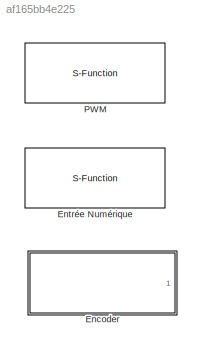
MODEL slx_af165bb4e225
KIND library
CONFIG AbsTol = auto
CONFIG FixedStep = 0.01
CONFIG MaxStep = auto
CONFIG MinStep = auto
CONFIG RelTol = 1e-3
CONFIG SampleTimeConstraint = Unconstrained
CONFIG Solver = ode45
CONFIG SolverMode = Auto
CONFIG SolverName = ode45
CONFIG StartTime = 0.0
CONFIG StopTime = 10.0
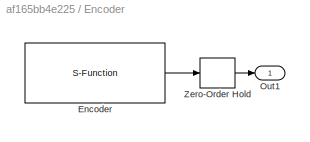
BLOCK [SubSystem] Encoder
  Ports = [0, 1]
  RequestExecContextInheritance = off
BLOCK [S-Function] Encoder/Encoder
  FunctionName = Encoder
  Parameters = pinA,pinB
  Ports = [0, 1]
BLOCK [Outport] Encoder/Out1
  IconDisplay = Port number
BLOCK [ZeroOrderHold] Encoder/Zero-Order Hold
  SampleTime = -1
BLOCK [S-Function] Entrée Numérique
  FunctionName = DigitalInput
  Parameters = pinNumber, isPullUp
  Ports = [0, 1]
BLOCK [S-Function] PWM
  FunctionName = PWM
  Parameters = pinNumber
  Ports = [1]
LINE Encoder/Encoder:1 -> Encoder/Zero-Order Hold:1
LINE Encoder/Zero-Order Hold:1 -> Encoder/Out1:1
